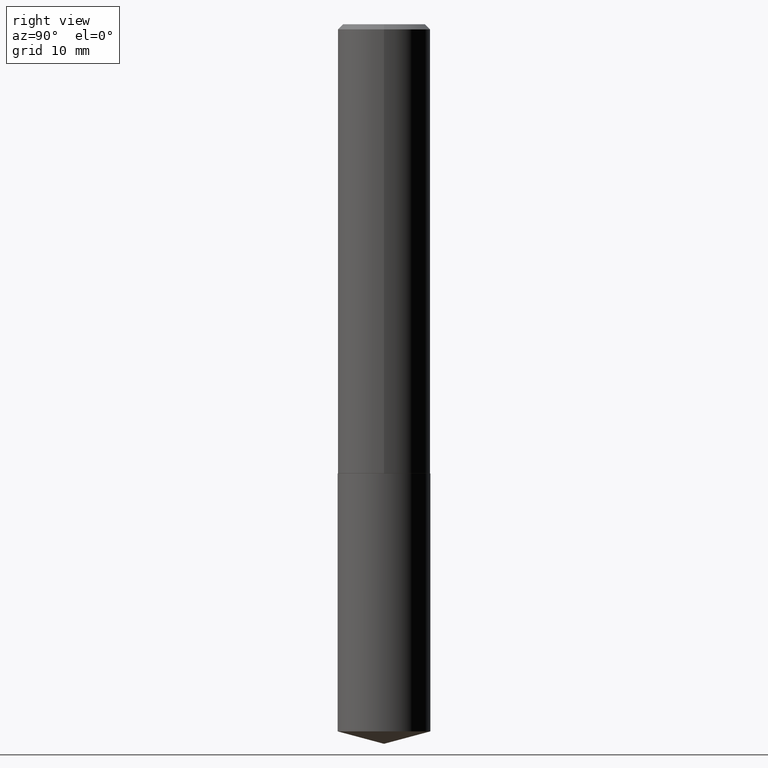
[diagram: clean part render]
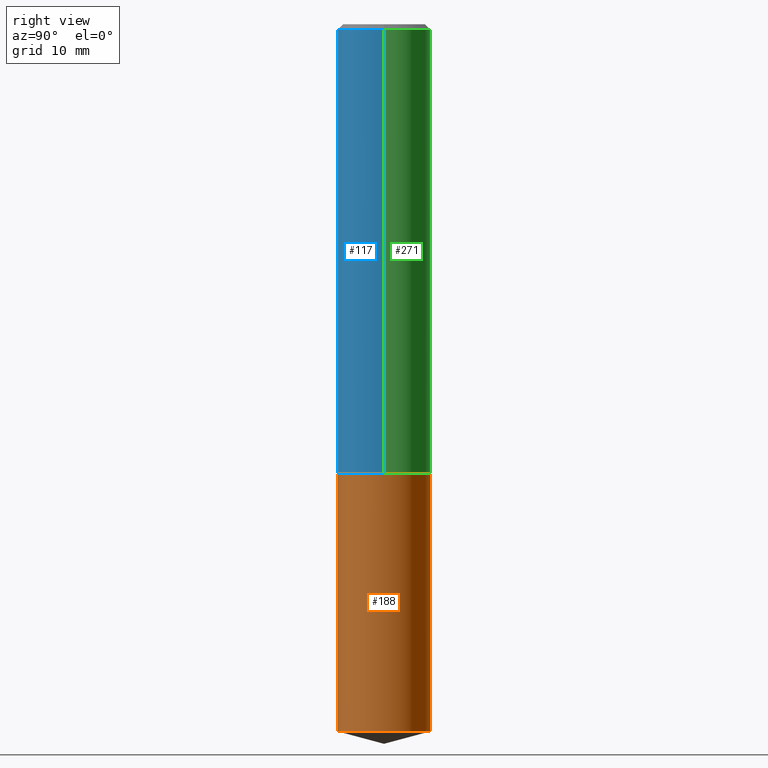
[diagram: same view with three faces highlighted in distinct colors, each labeled with its STEP entity id]
A machine part, right view with three faces highlighted in distinct colors.
Their STEP definitions:

[orange] entity #188 — the highlighted cylindrical surface (partial cylindrical patch) has radius 7.1501 mm, axis along (-0, 0, 1).
#1 = AXIS2_PLACEMENT_3D ( 'NONE', #7, #262, #134 ) ;
#7 = CARTESIAN_POINT ( 'NONE',  ( 6.672217090795527604E-29, -9.526157684899640905E-15, -2.728400000000000158 ) ) ;
#15 = AXIS2_PLACEMENT_3D ( 'NONE', #346, #114, #107 ) ;
#18 = CARTESIAN_POINT ( 'NONE',  ( 2.000177801164786352E-15, 0.2814999999999849289, -4.294672302330640790 ) ) ;
#19 = ORIENTED_EDGE ( 'NONE', *, *, #238, .F. ) ;
#38 = CARTESIAN_POINT ( 'NONE',  ( -1.965703993768578309E-15, -0.2815000000000149605, -4.294672302330638125 ) ) ;
#42 = ORIENTED_EDGE ( 'NONE', *, *, #183, .T. ) ;
#49 = EDGE_CURVE ( 'NONE', #77, #222, #296, .T. ) ;
#73 = DIRECTION ( 'NONE',  ( -2.445355825187269101E-29, 3.491643134062571246E-15, 1.000000000000000000 ) ) ;
#75 = ORIENTED_EDGE ( 'NONE', *, *, #49, .T. ) ;
#77 = VERTEX_POINT ( 'NONE', #38 ) ;
#106 = CARTESIAN_POINT ( 'NONE',  ( 1.050231018912923150E-28, -1.499502161540478992E-14, -4.294672302330639901 ) ) ;
#107 = DIRECTION ( 'NONE',  ( -6.982962677686265922E-15, -1.000000000000000000, 3.881844395970533976E-15 ) ) ;
#112 = DIRECTION ( 'NONE',  ( -2.445355825187269101E-29, 3.491643134062571246E-15, 1.000000000000000000 ) ) ;
#114 = DIRECTION ( 'NONE',  ( -2.445355825187268821E-29, 3.491643134062571246E-15, 1.000000000000000000 ) ) ;
#134 = DIRECTION ( 'NONE',  ( -6.982962677686265922E-15, -1.000000000000000000, 3.881844395970533976E-15 ) ) ;
#160 = CARTESIAN_POINT ( 'NONE',  ( 2.000177801164748486E-15, 0.2814999999999904801, -2.728400000000001491 ) ) ;
#166 = VECTOR ( 'NONE', #112, 39.37007874015748143 ) ;
#172 = LINE ( 'NONE', #380, #166 ) ;
#183 = EDGE_CURVE ( 'NONE', #222, #375, #308, .T. ) ;
#188 = ADVANCED_FACE ( 'NONE', ( #193 ), #200, .T. ) ;
#193 = FACE_OUTER_BOUND ( 'NONE', #360, .T. ) ;
#200 = CYLINDRICAL_SURFACE ( 'NONE', #1, 0.2814999999999999725 ) ;
#222 = VERTEX_POINT ( 'NONE', #18 ) ;
#229 = VECTOR ( 'NONE', #73, 39.37007874015748143 ) ;
#236 = CARTESIAN_POINT ( 'NONE',  ( 2.000177801164787141E-15, 0.2814999999999904801, -2.728400000000001491 ) ) ;
#238 = EDGE_CURVE ( 'NONE', #370, #375, #371, .T. ) ;
#262 = DIRECTION ( 'NONE',  ( -2.445355825187268821E-29, 3.491643134062571246E-15, 1.000000000000000000 ) ) ;
#291 = ORIENTED_EDGE ( 'NONE', *, *, #318, .F. ) ;
#296 = CIRCLE ( 'NONE', #378, 0.2814999999999999725 ) ;
#308 = LINE ( 'NONE', #160, #229 ) ;
#318 = EDGE_CURVE ( 'NONE', #77, #370, #172, .T. ) ;
#332 = DIRECTION ( 'NONE',  ( -2.445355825187268821E-29, 3.491643134062571246E-15, 1.000000000000000000 ) ) ;
#335 = DIRECTION ( 'NONE',  ( -6.982962677686265922E-15, -1.000000000000000000, 3.881844395970533976E-15 ) ) ;
#346 = CARTESIAN_POINT ( 'NONE',  ( 6.672217090795527604E-29, -9.526157684899640905E-15, -2.728400000000000158 ) ) ;
#359 = CARTESIAN_POINT ( 'NONE',  ( -1.965703993768616963E-15, -0.2815000000000095204, -2.728399999999999270 ) ) ;
#360 = EDGE_LOOP ( 'NONE', ( #75, #42, #19, #291 ) ) ;
#370 = VERTEX_POINT ( 'NONE', #359 ) ;
#371 = CIRCLE ( 'NONE', #15, 0.2814999999999999725 ) ;
#375 = VERTEX_POINT ( 'NONE', #236 ) ;
#378 = AXIS2_PLACEMENT_3D ( 'NONE', #106, #332, #335 ) ;
#380 = CARTESIAN_POINT ( 'NONE',  ( -1.965703993768616963E-15, -0.2815000000000095204, -2.728399999999999270 ) ) ;

[blue] entity #117 — the highlighted cylindrical surface (partial cylindrical patch) has radius 7.1501 mm, axis along (-0, 0, 1).
#2 = DIRECTION ( 'NONE',  ( -2.445468806185136597E-29, 3.491481338843145583E-15, 1.000000000000000000 ) ) ;
#9 = CIRCLE ( 'NONE', #259, 0.2815000000000003055 ) ;
#34 = ORIENTED_EDGE ( 'NONE', *, *, #304, .F. ) ;
#43 = CARTESIAN_POINT ( 'NONE',  ( 7.642090019328603538E-31, -1.091087918388490390E-16, -0.03125000000000021511 ) ) ;
#52 = CARTESIAN_POINT ( 'NONE',  ( -0.2815000000000003055, -7.524234143065534418E-15, -2.727899999999999991 ) ) ;
#57 = VECTOR ( 'NONE', #315, 39.37007874015748143 ) ;
#66 = CARTESIAN_POINT ( 'NONE',  ( 0.000000000000000000, 0.000000000000000000, 0.000000000000000000 ) ) ;
#69 = VERTEX_POINT ( 'NONE', #281 ) ;
#101 = CARTESIAN_POINT ( 'NONE',  ( 6.670994356392434802E-29, -9.524411944230218613E-15, -2.727899999999999991 ) ) ;
#117 = ADVANCED_FACE ( 'NONE', ( #155 ), #219, .T. ) ;
#122 = ORIENTED_EDGE ( 'NONE', *, *, #212, .F. ) ;
#123 = DIRECTION ( 'NONE',  ( 1.000000000000000000, -6.982962677686265922E-15, 4.876176775795935793E-29 ) ) ;
#124 = EDGE_LOOP ( 'NONE', ( #122, #354, #316, #34 ) ) ;
#128 = EDGE_CURVE ( 'NONE', #182, #69, #272, .T. ) ;
#143 = LINE ( 'NONE', #253, #57 ) ;
#154 = EDGE_CURVE ( 'NONE', #279, #182, #9, .T. ) ;
#155 = FACE_OUTER_BOUND ( 'NONE', #124, .T. ) ;
#167 = DIRECTION ( 'NONE',  ( 1.000000000000000000, -6.982962677686267499E-15, 0.000000000000000000 ) ) ;
#182 = VERTEX_POINT ( 'NONE', #189 ) ;
#185 = AXIS2_PLACEMENT_3D ( 'NONE', #66, #2, #123 ) ;
#187 = DIRECTION ( 'NONE',  ( -2.445468806185136597E-29, 3.491481338843145583E-15, 1.000000000000000000 ) ) ;
#189 = CARTESIAN_POINT ( 'NONE',  ( 0.2815000000000003055, -1.149011593799890421E-14, -2.727899999999999991 ) ) ;
#192 = VERTEX_POINT ( 'NONE', #345 ) ;
#202 = DIRECTION ( 'NONE',  ( -2.445468806185136597E-29, 3.491481338843145583E-15, 1.000000000000000000 ) ) ;
#207 = AXIS2_PLACEMENT_3D ( 'NONE', #43, #202, #167 ) ;
#212 = EDGE_CURVE ( 'NONE', #279, #192, #143, .T. ) ;
#219 = CYLINDRICAL_SURFACE ( 'NONE', #185, 0.2815000000000001390 ) ;
#224 = VECTOR ( 'NONE', #389, 39.37007874015748143 ) ;
#248 = CARTESIAN_POINT ( 'NONE',  ( 0.2815000000000001390, -1.965703993768684805E-15, 1.372643762386556638E-29 ) ) ;
#253 = CARTESIAN_POINT ( 'NONE',  ( -0.2815000000000001390, 2.000177801164683011E-15, -1.384680227906756714E-29 ) ) ;
#259 = AXIS2_PLACEMENT_3D ( 'NONE', #101, #187, #306 ) ;
#272 = LINE ( 'NONE', #248, #224 ) ;
#279 = VERTEX_POINT ( 'NONE', #52 ) ;
#281 = CARTESIAN_POINT ( 'NONE',  ( 0.2814999999999999725, -2.074812785607533117E-15, -0.03125000000000021511 ) ) ;
#304 = EDGE_CURVE ( 'NONE', #192, #69, #348, .T. ) ;
#306 = DIRECTION ( 'NONE',  ( 1.000000000000000000, -6.982962677686264344E-15, 0.000000000000000000 ) ) ;
#315 = DIRECTION ( 'NONE',  ( -2.445468806185136877E-29, 3.491481338843145188E-15, 1.000000000000000000 ) ) ;
#316 = ORIENTED_EDGE ( 'NONE', *, *, #128, .T. ) ;
#345 = CARTESIAN_POINT ( 'NONE',  ( -0.2814999999999999725, -2.816582566869850057E-15, -0.03125000000000021511 ) ) ;
#348 = CIRCLE ( 'NONE', #207, 0.2814999999999999725 ) ;
#354 = ORIENTED_EDGE ( 'NONE', *, *, #154, .T. ) ;
#389 = DIRECTION ( 'NONE',  ( -2.445468806185136877E-29, 3.491481338843145188E-15, 1.000000000000000000 ) ) ;

[green] entity #271 — the highlighted cylindrical surface (partial cylindrical patch) has radius 7.1501 mm, axis along (-0, 0, 1).
#10 = ORIENTED_EDGE ( 'NONE', *, *, #344, .F. ) ;
#13 = EDGE_LOOP ( 'NONE', ( #50, #159, #10, #136 ) ) ;
#37 = AXIS2_PLACEMENT_3D ( 'NONE', #243, #368, #162 ) ;
#41 = DIRECTION ( 'NONE',  ( 1.000000000000000000, -6.982962677686265922E-15, 4.876176775795935793E-29 ) ) ;
#47 = FACE_OUTER_BOUND ( 'NONE', #13, .T. ) ;
#50 = ORIENTED_EDGE ( 'NONE', *, *, #84, .T. ) ;
#52 = CARTESIAN_POINT ( 'NONE',  ( -0.2815000000000003055, -7.524234143065534418E-15, -2.727899999999999991 ) ) ;
#56 = CARTESIAN_POINT ( 'NONE',  ( 7.642090019328603538E-31, -1.091087918388490390E-16, -0.03125000000000021511 ) ) ;
#57 = VECTOR ( 'NONE', #315, 39.37007874015748143 ) ;
#69 = VERTEX_POINT ( 'NONE', #281 ) ;
#80 = CIRCLE ( 'NONE', #37, 0.2815000000000003055 ) ;
#84 = EDGE_CURVE ( 'NONE', #182, #279, #80, .T. ) ;
#110 = CYLINDRICAL_SURFACE ( 'NONE', #242, 0.2815000000000001390 ) ;
#128 = EDGE_CURVE ( 'NONE', #182, #69, #272, .T. ) ;
#136 = ORIENTED_EDGE ( 'NONE', *, *, #128, .F. ) ;
#143 = LINE ( 'NONE', #253, #57 ) ;
#159 = ORIENTED_EDGE ( 'NONE', *, *, #212, .T. ) ;
#162 = DIRECTION ( 'NONE',  ( 1.000000000000000000, -6.982962677686264344E-15, 0.000000000000000000 ) ) ;
#176 = DIRECTION ( 'NONE',  ( 1.000000000000000000, -6.982962677686267499E-15, 0.000000000000000000 ) ) ;
#177 = DIRECTION ( 'NONE',  ( -2.445468806185136597E-29, 3.491481338843145583E-15, 1.000000000000000000 ) ) ;
#182 = VERTEX_POINT ( 'NONE', #189 ) ;
#189 = CARTESIAN_POINT ( 'NONE',  ( 0.2815000000000003055, -1.149011593799890421E-14, -2.727899999999999991 ) ) ;
#192 = VERTEX_POINT ( 'NONE', #345 ) ;
#212 = EDGE_CURVE ( 'NONE', #279, #192, #143, .T. ) ;
#224 = VECTOR ( 'NONE', #389, 39.37007874015748143 ) ;
#242 = AXIS2_PLACEMENT_3D ( 'NONE', #251, #313, #41 ) ;
#243 = CARTESIAN_POINT ( 'NONE',  ( 6.670994356392434802E-29, -9.524411944230218613E-15, -2.727899999999999991 ) ) ;
#246 = CIRCLE ( 'NONE', #284, 0.2814999999999999725 ) ;
#248 = CARTESIAN_POINT ( 'NONE',  ( 0.2815000000000001390, -1.965703993768684805E-15, 1.372643762386556638E-29 ) ) ;
#251 = CARTESIAN_POINT ( 'NONE',  ( 0.000000000000000000, 0.000000000000000000, 0.000000000000000000 ) ) ;
#253 = CARTESIAN_POINT ( 'NONE',  ( -0.2815000000000001390, 2.000177801164683011E-15, -1.384680227906756714E-29 ) ) ;
#271 = ADVANCED_FACE ( 'NONE', ( #47 ), #110, .T. ) ;
#272 = LINE ( 'NONE', #248, #224 ) ;
#279 = VERTEX_POINT ( 'NONE', #52 ) ;
#281 = CARTESIAN_POINT ( 'NONE',  ( 0.2814999999999999725, -2.074812785607533117E-15, -0.03125000000000021511 ) ) ;
#284 = AXIS2_PLACEMENT_3D ( 'NONE', #56, #177, #176 ) ;
#313 = DIRECTION ( 'NONE',  ( -2.445468806185136597E-29, 3.491481338843145583E-15, 1.000000000000000000 ) ) ;
#315 = DIRECTION ( 'NONE',  ( -2.445468806185136877E-29, 3.491481338843145188E-15, 1.000000000000000000 ) ) ;
#344 = EDGE_CURVE ( 'NONE', #69, #192, #246, .T. ) ;
#345 = CARTESIAN_POINT ( 'NONE',  ( -0.2814999999999999725, -2.816582566869850057E-15, -0.03125000000000021511 ) ) ;
#368 = DIRECTION ( 'NONE',  ( -2.445468806185136597E-29, 3.491481338843145583E-15, 1.000000000000000000 ) ) ;
#389 = DIRECTION ( 'NONE',  ( -2.445468806185136877E-29, 3.491481338843145188E-15, 1.000000000000000000 ) ) ;